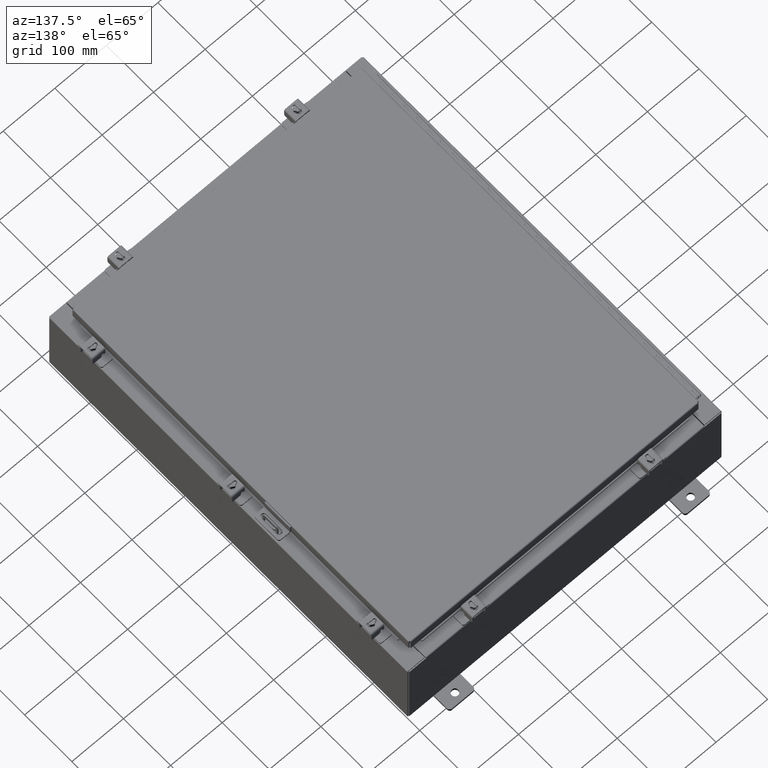
[diagram: clean part render]
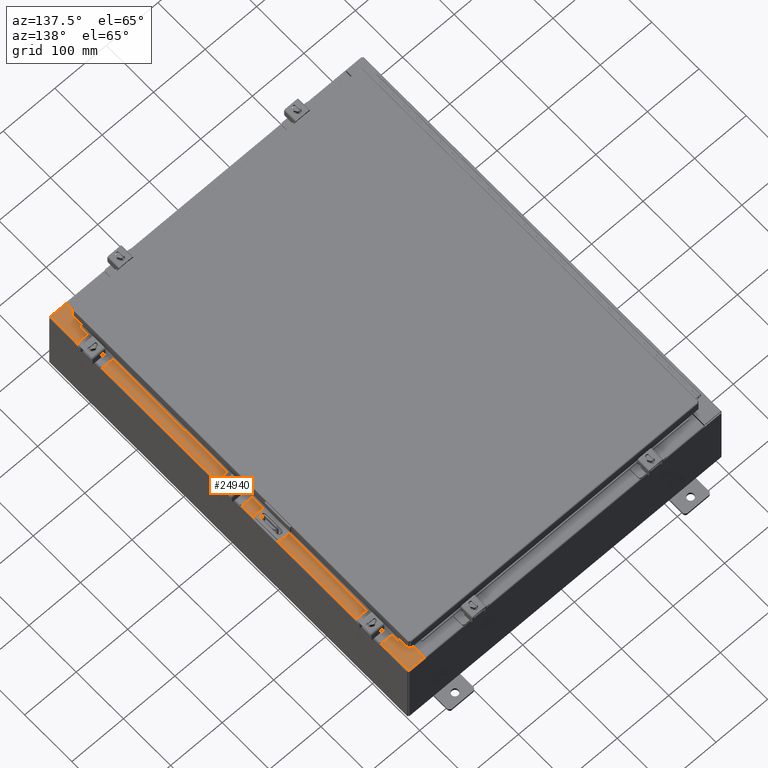
[diagram: same view with one face highlighted and labeled with its STEP entity id]
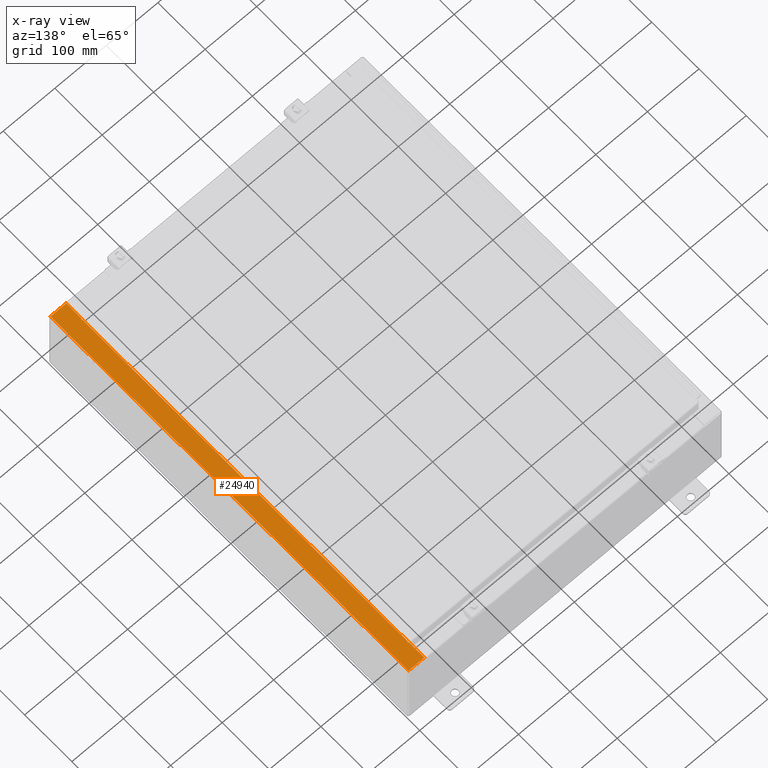
[diagram: x-ray of the same camera — body ghosted, the highlighted face saturated]
A machine part, auxiliary view. The second image highlights one B-rep face of the part: STEP entity #24940.
The next image is the same camera in x-ray: the body ghosted, the highlighted face saturated — about 0% of this face is hidden behind the body in this view.
In plain terms, the highlighted planar face has unit normal (-0, 0, -1).
Its self-contained STEP definition (entity closure, byte-faithful):
#305 = CARTESIAN_POINT ( 'NONE',  ( 10.71270000000001800, -13.59375000000000400, 5.925300000000012400 ) ) ;
#748 = DIRECTION ( 'NONE',  ( 1.000000000000000000, 0.0000000000000000000, 0.0000000000000000000 ) ) ;
#1644 = DIRECTION ( 'NONE',  ( 7.132762385546384700E-015, 0.0000000000000000000, 1.000000000000000000 ) ) ;
#2082 = LINE ( 'NONE', #2480, #6229 ) ;
#2089 = CIRCLE ( 'NONE', #32551, 0.01867499999999949400 ) ;
#2480 = CARTESIAN_POINT ( 'NONE',  ( 10.69970000000001800, -13.63110000000000400, 5.925300000000011600 ) ) ;
#3160 = EDGE_CURVE ( 'NONE', #36648, #7664, #25703, .T. ) ;
#3441 = ORIENTED_EDGE ( 'NONE', *, *, #20696, .F. ) ;
#4031 = DIRECTION ( 'NONE',  ( -7.132762385546384700E-015, 0.0000000000000000000, -1.000000000000000000 ) ) ;
#4123 = LINE ( 'NONE', #4991, #13682 ) ;
#4651 = DIRECTION ( 'NONE',  ( 0.0000000000000000000, -1.000000000000000000, 0.0000000000000000000 ) ) ;
#4991 = CARTESIAN_POINT ( 'NONE',  ( 10.71270000000001800, 13.59375000000000400, 5.925300000000012400 ) ) ;
#5163 = ORIENTED_EDGE ( 'NONE', *, *, #7274, .F. ) ;
#5376 = ORIENTED_EDGE ( 'NONE', *, *, #21873, .T. ) ;
#5671 = VECTOR ( 'NONE', #20234, 39.37007874015748100 ) ;
#6229 = VECTOR ( 'NONE', #9827, 39.37007874015748100 ) ;
#7069 = VERTEX_POINT ( 'NONE', #10859 ) ;
#7274 = EDGE_CURVE ( 'NONE', #22357, #7069, #20134, .T. ) ;
#7664 = VERTEX_POINT ( 'NONE', #305 ) ;
#7948 = CARTESIAN_POINT ( 'NONE',  ( 10.75005000000001600, -13.59375000000000400, 5.925300000000009800 ) ) ;
#8203 = CARTESIAN_POINT ( 'NONE',  ( 10.71270000000001800, -13.59375000000000400, 5.925300000000012400 ) ) ;
#8517 = VERTEX_POINT ( 'NONE', #30445 ) ;
#8786 = ORIENTED_EDGE ( 'NONE', *, *, #19463, .F. ) ;
#9767 = ORIENTED_EDGE ( 'NONE', *, *, #11446, .F. ) ;
#9827 = DIRECTION ( 'NONE',  ( 1.000000000000000000, 0.0000000000000000000, 2.170286390200049500E-014 ) ) ;
#9974 = DIRECTION ( 'NONE',  ( -1.000000000000000000, 0.0000000000000000000, 7.132762385546384700E-015 ) ) ;
#10066 = VECTOR ( 'NONE', #28920, 39.37007874015748100 ) ;
#10426 = EDGE_CURVE ( 'NONE', #7664, #12590, #19662, .T. ) ;
#10859 = CARTESIAN_POINT ( 'NONE',  ( 10.75005000000001600, 13.63110000000000400, 5.925300000000009800 ) ) ;
#11177 = LINE ( 'NONE', #26659, #25896 ) ;
#11446 = EDGE_CURVE ( 'NONE', #36019, #37870, #18479, .T. ) ;
#12234 = AXIS2_PLACEMENT_3D ( 'NONE', #19201, #4031, #9974 ) ;
#12590 = VERTEX_POINT ( 'NONE', #33517 ) ;
#13238 = DIRECTION ( 'NONE',  ( 1.000000000000000000, 0.0000000000000000000, 0.0000000000000000000 ) ) ;
#13682 = VECTOR ( 'NONE', #748, 39.37007874015748100 ) ;
#14801 = VERTEX_POINT ( 'NONE', #26464 ) ;
#15578 = DIRECTION ( 'NONE',  ( 1.000000000000000000, 0.0000000000000000000, 0.0000000000000000000 ) ) ;
#15610 = LINE ( 'NONE', #17449, #5671 ) ;
#16901 = ORIENTED_EDGE ( 'NONE', *, *, #28848, .T. ) ;
#17331 = FACE_OUTER_BOUND ( 'NONE', #20917, .T. ) ;
#17449 = CARTESIAN_POINT ( 'NONE',  ( 4.252457061909019600E-014, 14.92530000000000000, 5.925300000000087100 ) ) ;
#17725 = CARTESIAN_POINT ( 'NONE',  ( 6.913922522733910100E-014, -14.92530000000002300, 5.925300000000087100 ) ) ;
#17945 = DIRECTION ( 'NONE',  ( 0.0000000000000000000, -1.000000000000000000, 0.0000000000000000000 ) ) ;
#18230 = DIRECTION ( 'NONE',  ( 7.132762385546384700E-015, 0.0000000000000000000, 1.000000000000000000 ) ) ;
#18278 = DIRECTION ( 'NONE',  ( -0.0000000000000000000, -1.000000000000000000, -0.0000000000000000000 ) ) ;
#18479 = LINE ( 'NONE', #24039, #20826 ) ;
#19087 = CARTESIAN_POINT ( 'NONE',  ( 10.69970000000001800, 13.63110000000000400, 5.925300000000009800 ) ) ;
#19201 = CARTESIAN_POINT ( 'NONE',  ( 4.252457061909019600E-014, 0.0000000000000000000, 5.925300000000087100 ) ) ;
#19463 = EDGE_CURVE ( 'NONE', #12590, #22357, #4123, .T. ) ;
#19662 = LINE ( 'NONE', #8203, #10066 ) ;
#20134 = CIRCLE ( 'NONE', #30669, 0.01867499999999949400 ) ;
#20234 = DIRECTION ( 'NONE',  ( -1.000000000000000000, 0.0000000000000000000, 7.132762385546384700E-015 ) ) ;
#20696 = EDGE_CURVE ( 'NONE', #7069, #25567, #24490, .T. ) ;
#20826 = VECTOR ( 'NONE', #18278, 39.37007874015748100 ) ;
#20917 = EDGE_LOOP ( 'NONE', ( #21546, #35153, #16901, #9767, #33010, #5376, #3441, #5163, #8786, #34506, #30746, #21106 ) ) ;
#21106 = ORIENTED_EDGE ( 'NONE', *, *, #30684, .F. ) ;
#21546 = ORIENTED_EDGE ( 'NONE', *, *, #25522, .F. ) ;
#21873 = EDGE_CURVE ( 'NONE', #24297, #25567, #28310, .T. ) ;
#22188 = CARTESIAN_POINT ( 'NONE',  ( 11.91230000000001600, 14.92530000000000200, 5.925300000000001800 ) ) ;
#22357 = VERTEX_POINT ( 'NONE', #32816 ) ;
#22667 = PLANE ( 'NONE',  #12234 ) ;
#22812 = DIRECTION ( 'NONE',  ( -1.000000000000000000, 0.0000000000000000000, -2.170286390200049500E-014 ) ) ;
#23742 = VECTOR ( 'NONE', #27493, 39.37007874015748100 ) ;
#24039 = CARTESIAN_POINT ( 'NONE',  ( 11.91230000000001600, -14.92530000000000200, 5.925300000000001800 ) ) ;
#24297 = VERTEX_POINT ( 'NONE', #31869 ) ;
#24490 = LINE ( 'NONE', #37060, #26838 ) ;
#24503 = VECTOR ( 'NONE', #31882, 39.37007874015748100 ) ;
#24765 = CARTESIAN_POINT ( 'NONE',  ( 10.75005000000001600, -13.61242500000000400, 5.925300000000012400 ) ) ;
#24940 = ADVANCED_FACE ( 'NONE', ( #17331 ), #22667, .F. ) ;
#25522 = EDGE_CURVE ( 'NONE', #31806, #8517, #2082, .T. ) ;
#25567 = VERTEX_POINT ( 'NONE', #19087 ) ;
#25703 = LINE ( 'NONE', #37136, #23742 ) ;
#25896 = VECTOR ( 'NONE', #17945, 39.37007874015748100 ) ;
#26329 = LINE ( 'NONE', #17725, #24503 ) ;
#26464 = CARTESIAN_POINT ( 'NONE',  ( 10.69970000000001800, -14.92530000000000200, 5.925300000000009800 ) ) ;
#26659 = CARTESIAN_POINT ( 'NONE',  ( 10.69970000000001800, 0.0000000000000000000, 5.925300000000009800 ) ) ;
#26838 = VECTOR ( 'NONE', #22812, 39.37007874015748100 ) ;
#27493 = DIRECTION ( 'NONE',  ( -1.000000000000000000, 0.0000000000000000000, 0.0000000000000000000 ) ) ;
#28310 = LINE ( 'NONE', #29916, #37497 ) ;
#28848 = EDGE_CURVE ( 'NONE', #14801, #37870, #26329, .T. ) ;
#28920 = DIRECTION ( 'NONE',  ( -0.0000000000000000000, 1.000000000000000000, -0.0000000000000000000 ) ) ;
#29577 = EDGE_CURVE ( 'NONE', #36019, #24297, #15610, .T. ) ;
#29916 = CARTESIAN_POINT ( 'NONE',  ( 10.69970000000001800, 0.0000000000000000000, 5.925300000000009800 ) ) ;
#30445 = CARTESIAN_POINT ( 'NONE',  ( 10.75005000000001600, -13.63110000000000400, 5.925300000000009800 ) ) ;
#30669 = AXIS2_PLACEMENT_3D ( 'NONE', #36279, #1644, #15578 ) ;
#30684 = EDGE_CURVE ( 'NONE', #8517, #36648, #2089, .T. ) ;
#30746 = ORIENTED_EDGE ( 'NONE', *, *, #3160, .F. ) ;
#31806 = VERTEX_POINT ( 'NONE', #32654 ) ;
#31869 = CARTESIAN_POINT ( 'NONE',  ( 10.69970000000001800, 14.92530000000000200, 5.925300000000009800 ) ) ;
#31882 = DIRECTION ( 'NONE',  ( 1.000000000000000000, 1.783190596386596200E-015, -7.132762385546384700E-015 ) ) ;
#32052 = CARTESIAN_POINT ( 'NONE',  ( 11.91230000000001600, -14.92530000000000200, 5.925300000000001800 ) ) ;
#32551 = AXIS2_PLACEMENT_3D ( 'NONE', #24765, #18230, #13238 ) ;
#32654 = CARTESIAN_POINT ( 'NONE',  ( 10.69970000000001800, -13.63110000000000400, 5.925300000000009800 ) ) ;
#32816 = CARTESIAN_POINT ( 'NONE',  ( 10.75005000000001600, 13.59375000000000400, 5.925300000000009800 ) ) ;
#33010 = ORIENTED_EDGE ( 'NONE', *, *, #29577, .T. ) ;
#33517 = CARTESIAN_POINT ( 'NONE',  ( 10.71270000000001800, 13.59375000000000400, 5.925300000000012400 ) ) ;
#33809 = EDGE_CURVE ( 'NONE', #31806, #14801, #11177, .T. ) ;
#34506 = ORIENTED_EDGE ( 'NONE', *, *, #10426, .F. ) ;
#35153 = ORIENTED_EDGE ( 'NONE', *, *, #33809, .T. ) ;
#36019 = VERTEX_POINT ( 'NONE', #22188 ) ;
#36279 = CARTESIAN_POINT ( 'NONE',  ( 10.75005000000001600, 13.61242500000000400, 5.925300000000012400 ) ) ;
#36648 = VERTEX_POINT ( 'NONE', #7948 ) ;
#37060 = CARTESIAN_POINT ( 'NONE',  ( 10.75005000000001600, 13.63110000000000400, 5.925300000000012400 ) ) ;
#37136 = CARTESIAN_POINT ( 'NONE',  ( 10.75005000000001600, -13.59375000000000400, 5.925300000000012400 ) ) ;
#37497 = VECTOR ( 'NONE', #4651, 39.37007874015748100 ) ;
#37870 = VERTEX_POINT ( 'NONE', #32052 ) ;